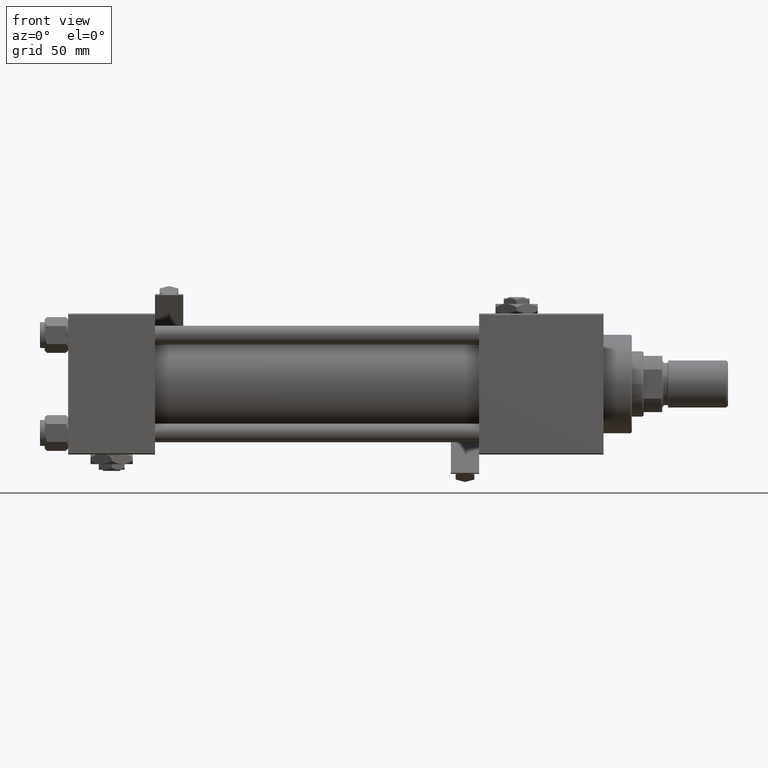
[diagram: clean part render]
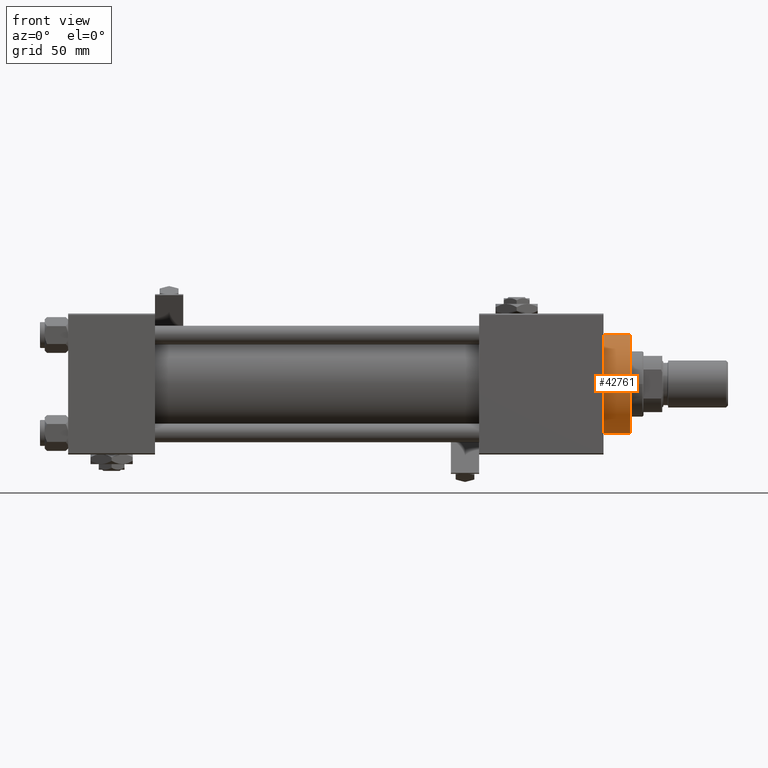
[diagram: same view with one face highlighted and labeled with its STEP entity id]
A machine part, front view. The second image highlights one B-rep face of the part: STEP entity #42761.
In plain terms, the highlighted cylindrical surface (partial cylindrical patch) has radius 21 mm, axis along (-1, -0, -0).
Its self-contained STEP definition (entity closure, byte-faithful):
#1542 = EDGE_CURVE ( 'NONE', #46702, #30505, #44022, .T. ) ;
#1726 = ORIENTED_EDGE ( 'NONE', *, *, #1542, .T. ) ;
#2882 = CARTESIAN_POINT ( 'NONE',  ( -21.00000000000000000, 0.000000000000000000, 28.69999999999999929 ) ) ;
#4351 = DIRECTION ( 'NONE',  ( -1.000000000000000000, 0.000000000000000000, 0.000000000000000000 ) ) ;
#6063 = VECTOR ( 'NONE', #11587, 1000.000000000000000 ) ;
#6641 = VECTOR ( 'NONE', #25921, 1000.000000000000000 ) ;
#8883 = AXIS2_PLACEMENT_3D ( 'NONE', #49760, #29070, #4351 ) ;
#10104 = ORIENTED_EDGE ( 'NONE', *, *, #22624, .F. ) ;
#10129 = CIRCLE ( 'NONE', #14473, 21.00000000000000000 ) ;
#11048 = EDGE_CURVE ( 'NONE', #13679, #46702, #20822, .T. ) ;
#11587 = DIRECTION ( 'NONE',  ( -0.000000000000000000, -0.000000000000000000, -1.000000000000000000 ) ) ;
#12767 = ORIENTED_EDGE ( 'NONE', *, *, #26890, .T. ) ;
#13679 = VERTEX_POINT ( 'NONE', #34340 ) ;
#14473 = AXIS2_PLACEMENT_3D ( 'NONE', #37791, #25268, #50023 ) ;
#15323 = AXIS2_PLACEMENT_3D ( 'NONE', #50161, #38196, #25139 ) ;
#18300 = LINE ( 'NONE', #46592, #6641 ) ;
#20287 = CARTESIAN_POINT ( 'NONE',  ( -21.00000000000000000, 0.000000000000000000, 40.70000000000000284 ) ) ;
#20822 = LINE ( 'NONE', #20287, #6063 ) ;
#22624 = EDGE_CURVE ( 'NONE', #50432, #30505, #18300, .T. ) ;
#24876 = EDGE_LOOP ( 'NONE', ( #10104, #12767, #48048, #1726 ) ) ;
#25139 = DIRECTION ( 'NONE',  ( 1.000000000000000000, 0.000000000000000000, 0.000000000000000000 ) ) ;
#25268 = DIRECTION ( 'NONE',  ( 0.000000000000000000, 0.000000000000000000, -1.000000000000000000 ) ) ;
#25921 = DIRECTION ( 'NONE',  ( -0.000000000000000000, -0.000000000000000000, -1.000000000000000000 ) ) ;
#26890 = EDGE_CURVE ( 'NONE', #50432, #13679, #10129, .T. ) ;
#29070 = DIRECTION ( 'NONE',  ( -0.000000000000000000, -0.000000000000000000, -1.000000000000000000 ) ) ;
#30505 = VERTEX_POINT ( 'NONE', #34171 ) ;
#33166 = CYLINDRICAL_SURFACE ( 'NONE', #8883, 21.00000000000000000 ) ;
#34171 = CARTESIAN_POINT ( 'NONE',  ( 21.00000000000000000, 2.571758278209441661E-15, 28.69999999999999929 ) ) ;
#34340 = CARTESIAN_POINT ( 'NONE',  ( -21.00000000000000000, 0.000000000000000000, 40.19999999999998863 ) ) ;
#37258 = FACE_OUTER_BOUND ( 'NONE', #24876, .T. ) ;
#37791 = CARTESIAN_POINT ( 'NONE',  ( 0.000000000000000000, 0.000000000000000000, 40.19999999999998863 ) ) ;
#38196 = DIRECTION ( 'NONE',  ( 0.000000000000000000, 0.000000000000000000, 1.000000000000000000 ) ) ;
#42718 = CARTESIAN_POINT ( 'NONE',  ( 21.00000000000000000, 2.571758278209441661E-15, 40.19999999999998863 ) ) ;
#42761 = ADVANCED_FACE ( 'NONE', ( #37258 ), #33166, .T. ) ;
#44022 = CIRCLE ( 'NONE', #15323, 21.00000000000000000 ) ;
#46592 = CARTESIAN_POINT ( 'NONE',  ( 21.00000000000000000, 2.571758278209441661E-15, 40.70000000000000284 ) ) ;
#46702 = VERTEX_POINT ( 'NONE', #2882 ) ;
#48048 = ORIENTED_EDGE ( 'NONE', *, *, #11048, .T. ) ;
#49760 = CARTESIAN_POINT ( 'NONE',  ( 0.000000000000000000, 0.000000000000000000, 40.70000000000000284 ) ) ;
#50023 = DIRECTION ( 'NONE',  ( 1.000000000000000000, 0.000000000000000000, 0.000000000000000000 ) ) ;
#50161 = CARTESIAN_POINT ( 'NONE',  ( 0.000000000000000000, 0.000000000000000000, 28.69999999999999929 ) ) ;
#50432 = VERTEX_POINT ( 'NONE', #42718 ) ;